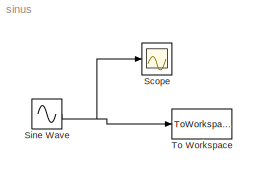
MODEL sinus
KIND model
BLOCK [Scope] Scope
  DataFormat = StructureWithTime
  LimitDataPoints = off
  NumInputPorts = 1
  Ports = [1]
BLOCK [Sin] Sine Wave
  Amplitude = 3
  Bias = 3
  Frequency = 2*pi*100
  Ports = [0, 1]
  SampleTime = 0
  SineType = Time based
BLOCK [ToWorkspace] To Workspace
  MaxDataPoints = inf
  SampleTime = ts
  SaveFormat = Array
  VariableName = simout
NET Sine Wave:1 -> Scope:1, To Workspace:1
note: NET lines group one-source signal fan-out (src -> all destinations, sorted); 1:1 wires keep LINE
